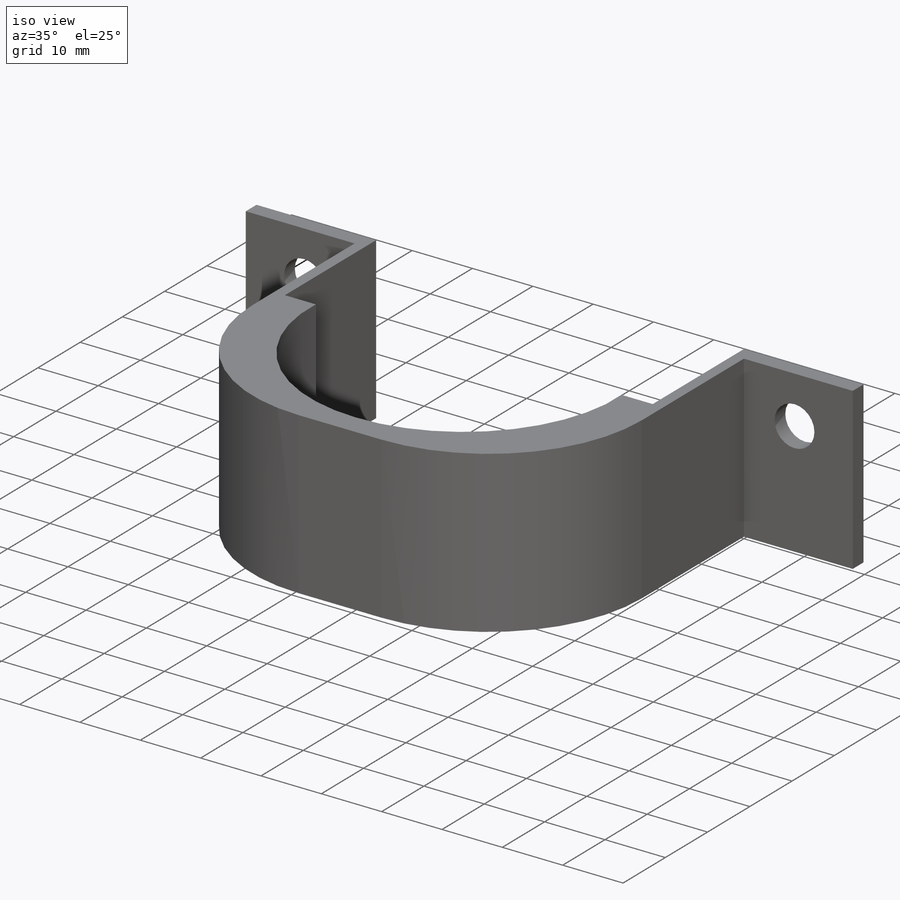
[diagram: iso view]
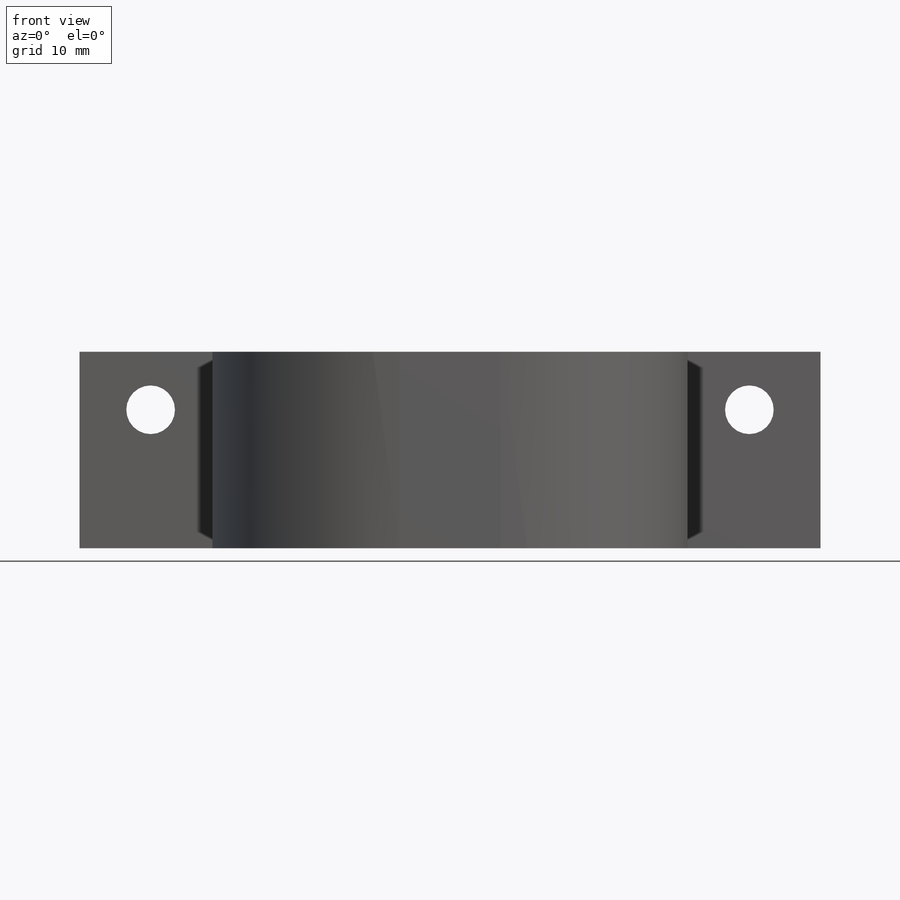
[diagram: front view]
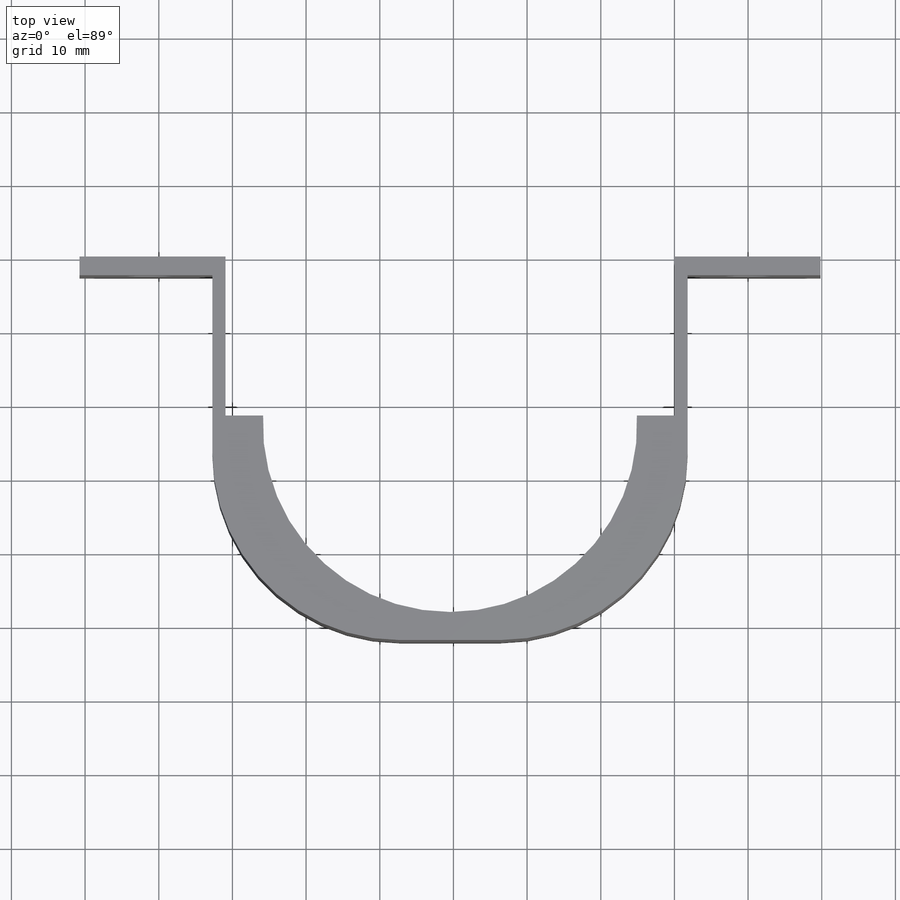
[diagram: top view]
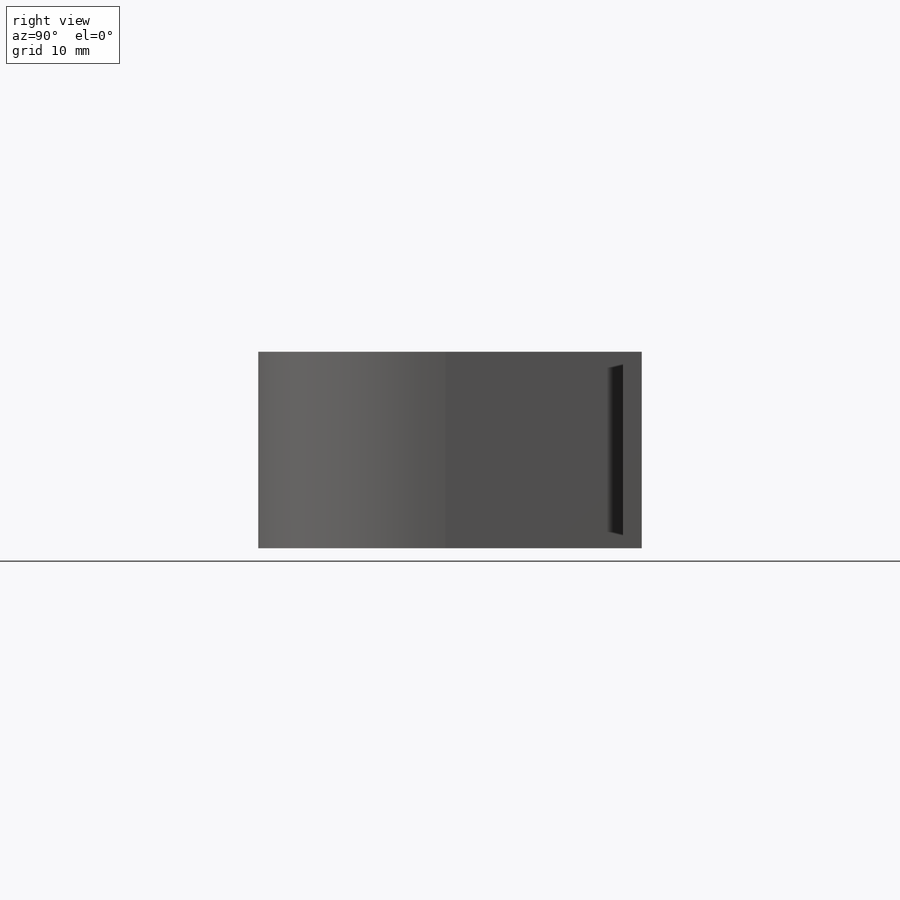
[diagram: right view]
SOLIDWORKS PART (.sldprt)
format: sldprt  version: not decoded by parser v0  size: 198,656 bytes
history: native  units: mm
features: sketch x3, extrude x2, material x1, cut_extrude x1, fillet x1 (+12 scaffold rows collapsed)
feature tree (20):
  scaffold x12  (default folders/planes/origin — collapsed)
  material  "Material <not specified>"
  sketch  "Sketch1"  dims[D3=6.604mm D4=6.604mm D1=100.584mm D2=26.67mm D5=9.652mm D6=9.652mm D7=7.874mm D8=7.874mm]
  extrude  "Boss-Extrude1"  Depth=2.54mm
  sketch  "Sketch2"  dims[D1=8.382mm D2=8.382mm D3=64.516mm]
  extrude  "Boss-Extrude2"  Depth=49.53mm
  sketch  "Sketch5"  dims[c1.D6=50.8mm c1.D1=1.778mm c1.D2=21.59mm c1.D3=1.778mm c1.D4=30.48mm c1.D5=32.258mm c2.D4=1.27mm]
  cut_extrude  "Cut-Extrude1"  [1 undecoded]
  fillet  "Fillet1"  Radius=25.4mm
decode coverage: 6 of 7 modeling features carry decoded parameters
note: 1 parameter value undecoded
note: suppression state not decoded; provenance and decode notes live in map.json
